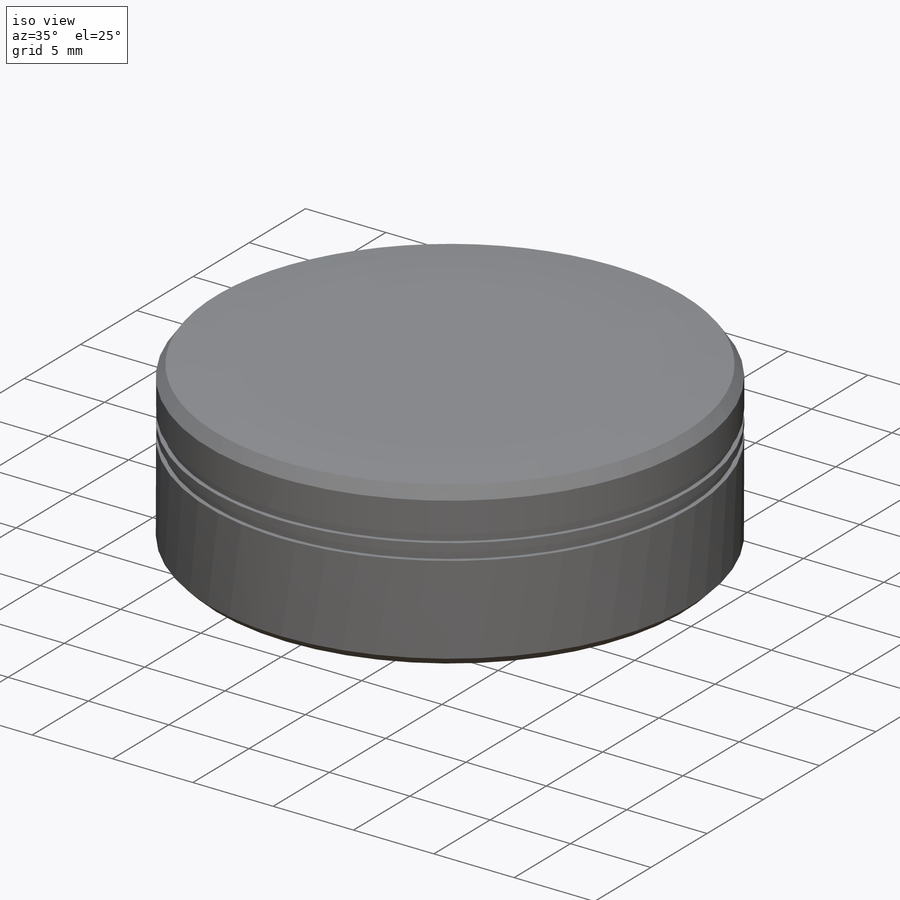
[diagram: iso view]
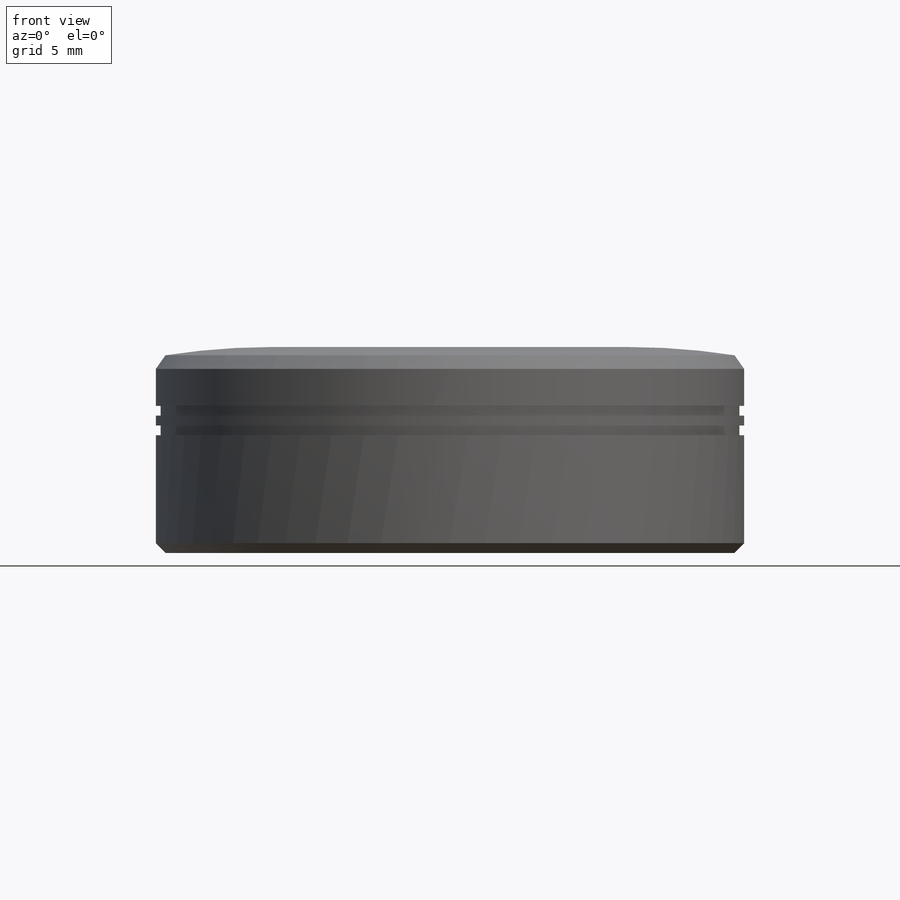
[diagram: front view]
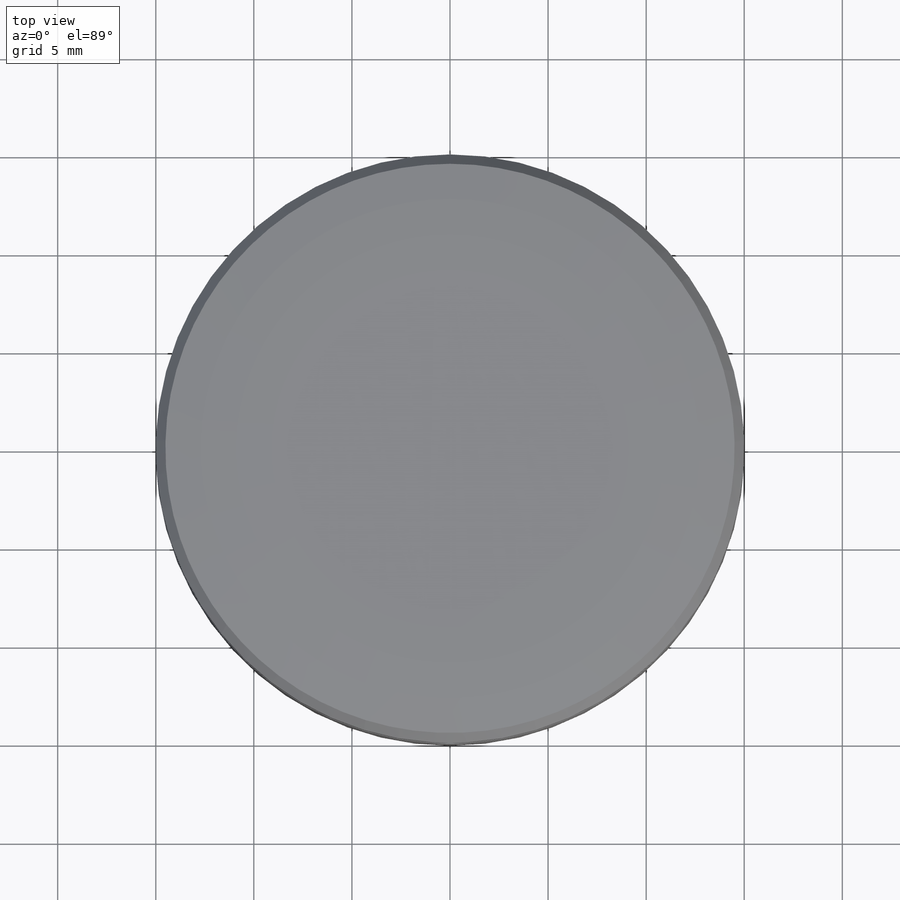
[diagram: top view]
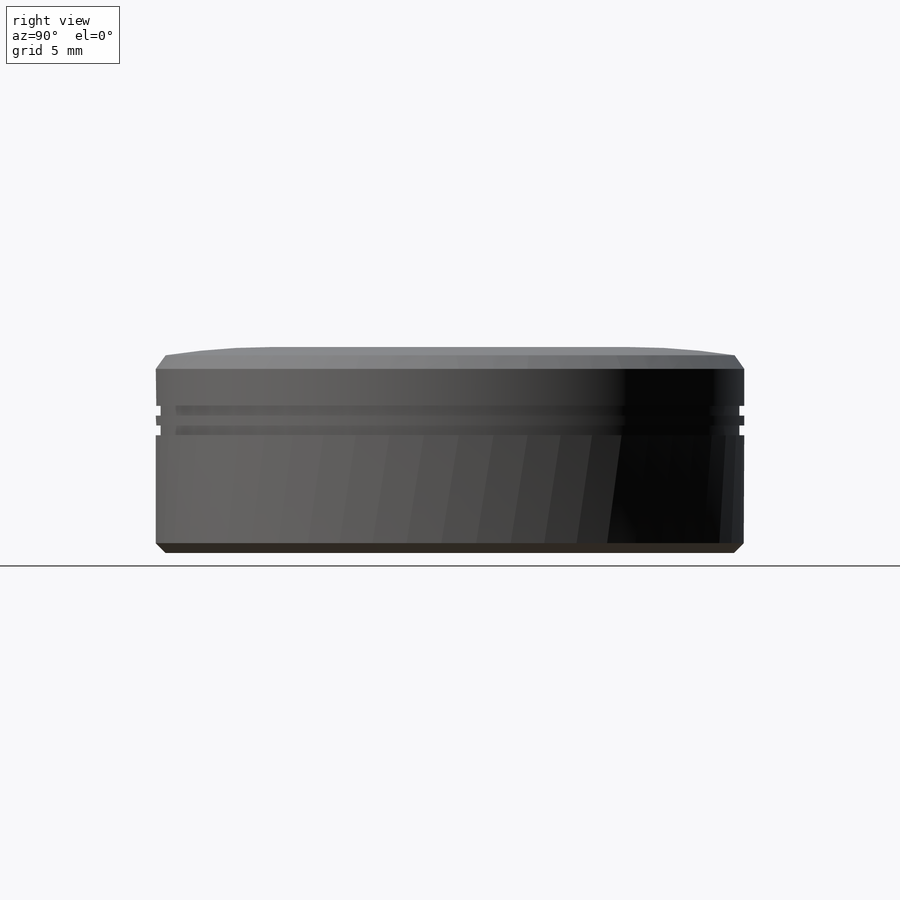
[diagram: right view]
SOLIDWORKS PART (.sldprt)
format: sldprt  version: not decoded by parser v0  size: 436,224 bytes
history: native  units: mm
features: sketch x5, chamfer x3, cut_extrude x2, material x1, extrude x1, cut_revolve x1, fillet x1 (+12 scaffold rows collapsed)
feature tree (26):
  scaffold x12  (default folders/planes/origin — collapsed)
  material  "Material <not specified>"
  sketch  "Sketch1"  dims[D1=30.0mm]
  extrude  "Boss-Extrude1"  Depth=12mm
  sketch  "Sketch2"  dims[D1=5.9mm]
  cut_extrude  "Cut-Extrude1"  Depth=9.8mm
  sketch  "Sketch3"  dims[c1.D1=0.5mm c1.D2=0.5mm c1.D3=0.5mm c1.D4=3.0mm c1.D5=1.0mm c2.D5=90.0deg c3.D5=0.25mm c3.D6=0.25mm]
  sketch  "Sketch4"
  cut_revolve  "Cut-Revolve1"  Angle=360deg
  chamfer  "Chamfer1"  Distance=0.5mm Angle=45deg
  fillet  "Fillet1"  Radius=35mm
  chamfer  "Chamfer3"  Distance=0.5mm Angle=45deg
  sketch  "Sketch5"  dims[D1=1.5mm]
  cut_extrude  "Cut-Extrude2"  [1 undecoded]
  chamfer  "Chamfer4"  Distance=0.5mm Angle=45deg
decode coverage: 11 of 13 modeling features carry decoded parameters
note: 1 parameter value undecoded
note: suppression state not decoded; provenance and decode notes live in map.json
